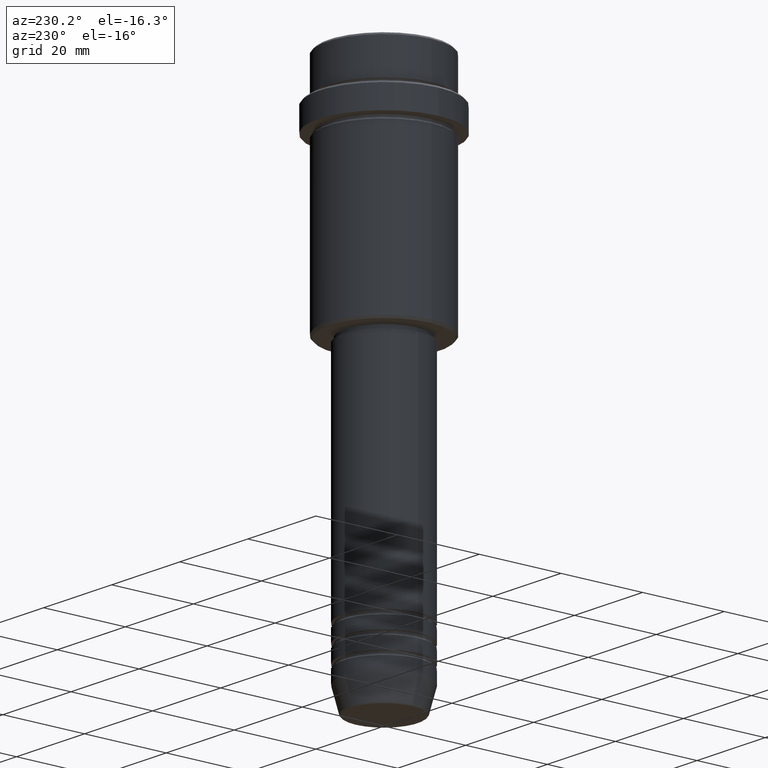
[diagram: clean part render]
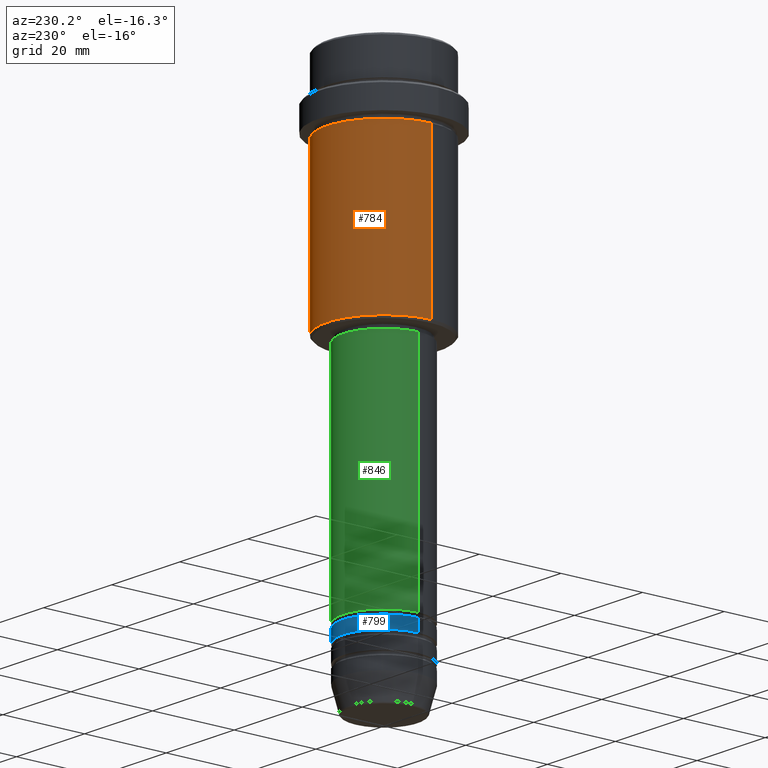
[diagram: same view with three faces highlighted in distinct colors, each labeled with its STEP entity id]
A machine part, auxiliary view with three faces highlighted in distinct colors.
Their STEP definitions:

[orange] entity #784 — the highlighted cylindrical surface (partial cylindrical patch) has radius 14 mm, axis along (-0, -0, 1).
#19 = CYLINDRICAL_SURFACE ( 'NONE', #554, 13.99999999999999467 ) ;
#27 = FACE_OUTER_BOUND ( 'NONE', #1030, .T. ) ;
#121 = CARTESIAN_POINT ( 'NONE',  ( 13.99999999999999467, 0.000000000000000000, -55.50000000000001421 ) ) ;
#166 = ORIENTED_EDGE ( 'NONE', *, *, #1314, .F. ) ;
#192 = DIRECTION ( 'NONE',  ( -0.000000000000000000, -0.000000000000000000, 1.000000000000000000 ) ) ;
#317 = CARTESIAN_POINT ( 'NONE',  ( -13.99999999999999467, 1.714505518806294046E-15, 0.000000000000000000 ) ) ;
#344 = CARTESIAN_POINT ( 'NONE',  ( -13.99999999999998757, 1.714505518806293652E-15, -17.00000000000000355 ) ) ;
#446 = CARTESIAN_POINT ( 'NONE',  ( 0.000000000000000000, 0.000000000000000000, -17.00000000000000355 ) ) ;
#489 = CARTESIAN_POINT ( 'NONE',  ( -13.99999999999999467, 1.714505518806294046E-15, -55.50000000000001421 ) ) ;
#509 = CARTESIAN_POINT ( 'NONE',  ( 13.99999999999998757, 0.000000000000000000, -17.00000000000000355 ) ) ;
#521 = CARTESIAN_POINT ( 'NONE',  ( 0.000000000000000000, 0.000000000000000000, -55.50000000000001421 ) ) ;
#542 = DIRECTION ( 'NONE',  ( 1.000000000000000000, 0.000000000000000000, 0.000000000000000000 ) ) ;
#554 = AXIS2_PLACEMENT_3D ( 'NONE', #667, #735, #1298 ) ;
#600 = EDGE_CURVE ( 'NONE', #766, #870, #841, .T. ) ;
#638 = DIRECTION ( 'NONE',  ( -0.000000000000000000, -0.000000000000000000, 1.000000000000000000 ) ) ;
#645 = AXIS2_PLACEMENT_3D ( 'NONE', #446, #1118, #542 ) ;
#667 = CARTESIAN_POINT ( 'NONE',  ( 0.000000000000000000, 0.000000000000000000, 0.000000000000000000 ) ) ;
#669 = EDGE_CURVE ( 'NONE', #719, #1061, #1207, .T. ) ;
#673 = VECTOR ( 'NONE', #192, 1000.000000000000000 ) ;
#719 = VERTEX_POINT ( 'NONE', #489 ) ;
#735 = DIRECTION ( 'NONE',  ( -0.000000000000000000, -0.000000000000000000, 1.000000000000000000 ) ) ;
#766 = VERTEX_POINT ( 'NONE', #121 ) ;
#781 = CIRCLE ( 'NONE', #645, 13.99999999999998757 ) ;
#784 = ADVANCED_FACE ( 'NONE', ( #27 ), #19, .T. ) ;
#786 = VECTOR ( 'NONE', #638, 1000.000000000000000 ) ;
#797 = ORIENTED_EDGE ( 'NONE', *, *, #600, .F. ) ;
#838 = AXIS2_PLACEMENT_3D ( 'NONE', #521, #1403, #991 ) ;
#841 = LINE ( 'NONE', #1289, #673 ) ;
#870 = VERTEX_POINT ( 'NONE', #509 ) ;
#985 = EDGE_CURVE ( 'NONE', #766, #719, #1137, .T. ) ;
#991 = DIRECTION ( 'NONE',  ( -1.000000000000000000, 0.000000000000000000, 0.000000000000000000 ) ) ;
#1030 = EDGE_LOOP ( 'NONE', ( #1179, #1102, #166, #797 ) ) ;
#1061 = VERTEX_POINT ( 'NONE', #344 ) ;
#1102 = ORIENTED_EDGE ( 'NONE', *, *, #669, .T. ) ;
#1118 = DIRECTION ( 'NONE',  ( -0.000000000000000000, -0.000000000000000000, 1.000000000000000000 ) ) ;
#1137 = CIRCLE ( 'NONE', #838, 13.99999999999999467 ) ;
#1179 = ORIENTED_EDGE ( 'NONE', *, *, #985, .T. ) ;
#1207 = LINE ( 'NONE', #317, #786 ) ;
#1289 = CARTESIAN_POINT ( 'NONE',  ( 13.99999999999999467, 0.000000000000000000, 0.000000000000000000 ) ) ;
#1298 = DIRECTION ( 'NONE',  ( 1.000000000000000000, 0.000000000000000000, 0.000000000000000000 ) ) ;
#1314 = EDGE_CURVE ( 'NONE', #870, #1061, #781, .T. ) ;
#1403 = DIRECTION ( 'NONE',  ( -0.000000000000000000, -0.000000000000000000, 1.000000000000000000 ) ) ;

[blue] entity #799 — the highlighted cylindrical surface (partial cylindrical patch) has radius 10 mm, axis along (-0, -0, 1).
#10 = DIRECTION ( 'NONE',  ( -0.000000000000000000, -0.000000000000000000, 1.000000000000000000 ) ) ;
#29 = DIRECTION ( 'NONE',  ( 1.000000000000000000, 0.000000000000000000, 0.000000000000000000 ) ) ;
#67 = AXIS2_PLACEMENT_3D ( 'NONE', #462, #1341, #29 ) ;
#111 = CARTESIAN_POINT ( 'NONE',  ( 10.00000000000000000, 0.000000000000000000, -115.9999999999998863 ) ) ;
#114 = ORIENTED_EDGE ( 'NONE', *, *, #294, .T. ) ;
#129 = AXIS2_PLACEMENT_3D ( 'NONE', #349, #969, #658 ) ;
#133 = CARTESIAN_POINT ( 'NONE',  ( 10.00000000000000000, 0.000000000000000000, -112.9999999999998721 ) ) ;
#171 = CARTESIAN_POINT ( 'NONE',  ( 10.00000000000000000, 0.000000000000000000, 0.000000000000000000 ) ) ;
#182 = VERTEX_POINT ( 'NONE', #304 ) ;
#184 = ORIENTED_EDGE ( 'NONE', *, *, #1086, .F. ) ;
#187 = ORIENTED_EDGE ( 'NONE', *, *, #920, .T. ) ;
#195 = FACE_OUTER_BOUND ( 'NONE', #721, .T. ) ;
#220 = VECTOR ( 'NONE', #940, 1000.000000000000000 ) ;
#230 = CYLINDRICAL_SURFACE ( 'NONE', #129, 10.00000000000000000 ) ;
#250 = VERTEX_POINT ( 'NONE', #517 ) ;
#294 = EDGE_CURVE ( 'NONE', #1383, #182, #1412, .T. ) ;
#303 = ORIENTED_EDGE ( 'NONE', *, *, #800, .F. ) ;
#304 = CARTESIAN_POINT ( 'NONE',  ( -10.00000000000000000, 1.224646799147353256E-15, -115.9999999999998863 ) ) ;
#349 = CARTESIAN_POINT ( 'NONE',  ( 0.000000000000000000, 0.000000000000000000, 0.000000000000000000 ) ) ;
#410 = DIRECTION ( 'NONE',  ( -0.000000000000000000, -0.000000000000000000, 1.000000000000000000 ) ) ;
#462 = CARTESIAN_POINT ( 'NONE',  ( 0.000000000000000000, 0.000000000000000000, -115.9999999999998863 ) ) ;
#517 = CARTESIAN_POINT ( 'NONE',  ( -10.00000000000000000, 1.224646799147353256E-15, -112.9999999999998721 ) ) ;
#658 = DIRECTION ( 'NONE',  ( 1.000000000000000000, 0.000000000000000000, 0.000000000000000000 ) ) ;
#721 = EDGE_LOOP ( 'NONE', ( #114, #187, #303, #184 ) ) ;
#799 = ADVANCED_FACE ( 'NONE', ( #195 ), #230, .T. ) ;
#800 = EDGE_CURVE ( 'NONE', #1290, #250, #1136, .T. ) ;
#920 = EDGE_CURVE ( 'NONE', #182, #250, #1036, .T. ) ;
#926 = AXIS2_PLACEMENT_3D ( 'NONE', #1109, #10, #958 ) ;
#940 = DIRECTION ( 'NONE',  ( -0.000000000000000000, -0.000000000000000000, 1.000000000000000000 ) ) ;
#958 = DIRECTION ( 'NONE',  ( 1.000000000000000000, 0.000000000000000000, 0.000000000000000000 ) ) ;
#961 = CARTESIAN_POINT ( 'NONE',  ( -10.00000000000000000, 1.224646799147353256E-15, 0.000000000000000000 ) ) ;
#969 = DIRECTION ( 'NONE',  ( -0.000000000000000000, -0.000000000000000000, 1.000000000000000000 ) ) ;
#979 = VECTOR ( 'NONE', #410, 1000.000000000000000 ) ;
#1036 = LINE ( 'NONE', #961, #979 ) ;
#1086 = EDGE_CURVE ( 'NONE', #1383, #1290, #1356, .T. ) ;
#1109 = CARTESIAN_POINT ( 'NONE',  ( 0.000000000000000000, 0.000000000000000000, -112.9999999999998721 ) ) ;
#1136 = CIRCLE ( 'NONE', #926, 10.00000000000000000 ) ;
#1290 = VERTEX_POINT ( 'NONE', #133 ) ;
#1341 = DIRECTION ( 'NONE',  ( -0.000000000000000000, -0.000000000000000000, 1.000000000000000000 ) ) ;
#1356 = LINE ( 'NONE', #171, #220 ) ;
#1383 = VERTEX_POINT ( 'NONE', #111 ) ;
#1412 = CIRCLE ( 'NONE', #67, 10.00000000000000000 ) ;

[green] entity #846 — the highlighted cylindrical surface (partial cylindrical patch) has radius 10 mm, axis along (-0, -0, 1).
#23 = AXIS2_PLACEMENT_3D ( 'NONE', #764, #621, #1212 ) ;
#54 = ORIENTED_EDGE ( 'NONE', *, *, #281, .T. ) ;
#72 = CARTESIAN_POINT ( 'NONE',  ( 10.00000000000000178, 0.000000000000000000, -57.00000000000000000 ) ) ;
#92 = VERTEX_POINT ( 'NONE', #72 ) ;
#191 = FACE_OUTER_BOUND ( 'NONE', #836, .T. ) ;
#232 = DIRECTION ( 'NONE',  ( -0.000000000000000000, -0.000000000000000000, 1.000000000000000000 ) ) ;
#281 = EDGE_CURVE ( 'NONE', #779, #1241, #1158, .T. ) ;
#333 = VECTOR ( 'NONE', #615, 1000.000000000000000 ) ;
#350 = ORIENTED_EDGE ( 'NONE', *, *, #853, .T. ) ;
#408 = CARTESIAN_POINT ( 'NONE',  ( 10.00000000000000000, 0.000000000000000000, -111.9999999999998721 ) ) ;
#417 = DIRECTION ( 'NONE',  ( -0.000000000000000000, -0.000000000000000000, 1.000000000000000000 ) ) ;
#520 = CYLINDRICAL_SURFACE ( 'NONE', #23, 10.00000000000000178 ) ;
#544 = LINE ( 'NONE', #994, #333 ) ;
#567 = ORIENTED_EDGE ( 'NONE', *, *, #1106, .F. ) ;
#615 = DIRECTION ( 'NONE',  ( -0.000000000000000000, -0.000000000000000000, 1.000000000000000000 ) ) ;
#621 = DIRECTION ( 'NONE',  ( -0.000000000000000000, -0.000000000000000000, 1.000000000000000000 ) ) ;
#696 = DIRECTION ( 'NONE',  ( 1.000000000000000000, 0.000000000000000000, 0.000000000000000000 ) ) ;
#732 = CARTESIAN_POINT ( 'NONE',  ( -10.00000000000000000, 1.224646799147353256E-15, -111.9999999999998721 ) ) ;
#764 = CARTESIAN_POINT ( 'NONE',  ( 0.000000000000000000, 0.000000000000000000, 0.000000000000000000 ) ) ;
#769 = DIRECTION ( 'NONE',  ( 1.000000000000000000, 0.000000000000000000, 0.000000000000000000 ) ) ;
#779 = VERTEX_POINT ( 'NONE', #408 ) ;
#811 = CIRCLE ( 'NONE', #1024, 10.00000000000000178 ) ;
#820 = CARTESIAN_POINT ( 'NONE',  ( 0.000000000000000000, 0.000000000000000000, -57.00000000000000000 ) ) ;
#836 = EDGE_LOOP ( 'NONE', ( #54, #350, #567, #1271 ) ) ;
#846 = ADVANCED_FACE ( 'NONE', ( #191 ), #520, .T. ) ;
#847 = CARTESIAN_POINT ( 'NONE',  ( -10.00000000000000178, 1.224646799147353454E-15, -57.00000000000000000 ) ) ;
#852 = AXIS2_PLACEMENT_3D ( 'NONE', #1405, #417, #769 ) ;
#853 = EDGE_CURVE ( 'NONE', #1241, #865, #544, .T. ) ;
#865 = VERTEX_POINT ( 'NONE', #847 ) ;
#952 = VECTOR ( 'NONE', #232, 1000.000000000000000 ) ;
#994 = CARTESIAN_POINT ( 'NONE',  ( -10.00000000000000178, 1.224646799147353454E-15, 0.000000000000000000 ) ) ;
#997 = LINE ( 'NONE', #1214, #952 ) ;
#1024 = AXIS2_PLACEMENT_3D ( 'NONE', #820, #1267, #696 ) ;
#1106 = EDGE_CURVE ( 'NONE', #92, #865, #811, .T. ) ;
#1158 = CIRCLE ( 'NONE', #852, 10.00000000000000000 ) ;
#1212 = DIRECTION ( 'NONE',  ( 1.000000000000000000, 0.000000000000000000, 0.000000000000000000 ) ) ;
#1214 = CARTESIAN_POINT ( 'NONE',  ( 10.00000000000000178, 0.000000000000000000, 0.000000000000000000 ) ) ;
#1241 = VERTEX_POINT ( 'NONE', #732 ) ;
#1267 = DIRECTION ( 'NONE',  ( -0.000000000000000000, -0.000000000000000000, 1.000000000000000000 ) ) ;
#1271 = ORIENTED_EDGE ( 'NONE', *, *, #1401, .F. ) ;
#1401 = EDGE_CURVE ( 'NONE', #779, #92, #997, .T. ) ;
#1405 = CARTESIAN_POINT ( 'NONE',  ( 0.000000000000000000, 0.000000000000000000, -111.9999999999998721 ) ) ;